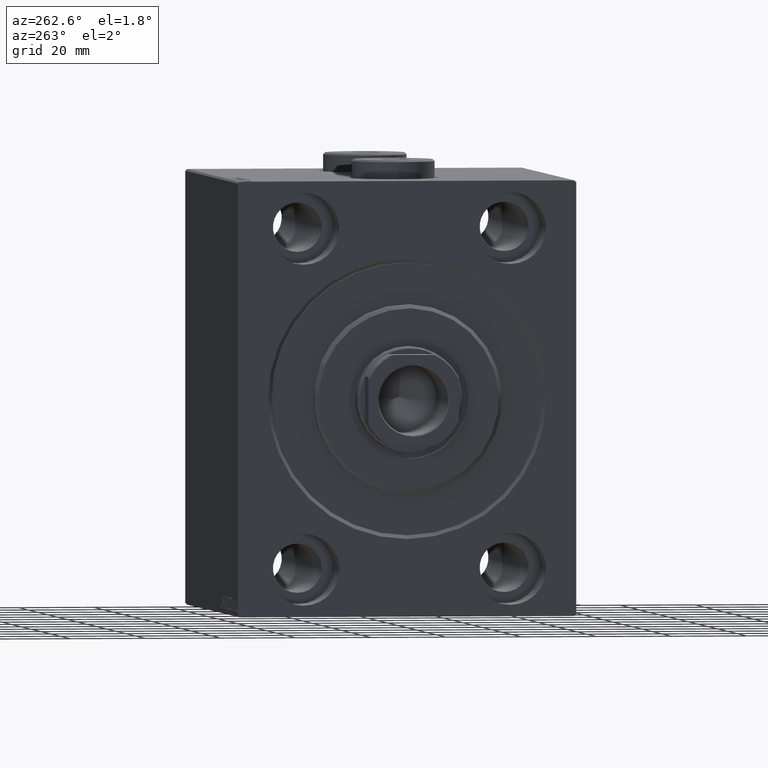
[diagram: clean part render]
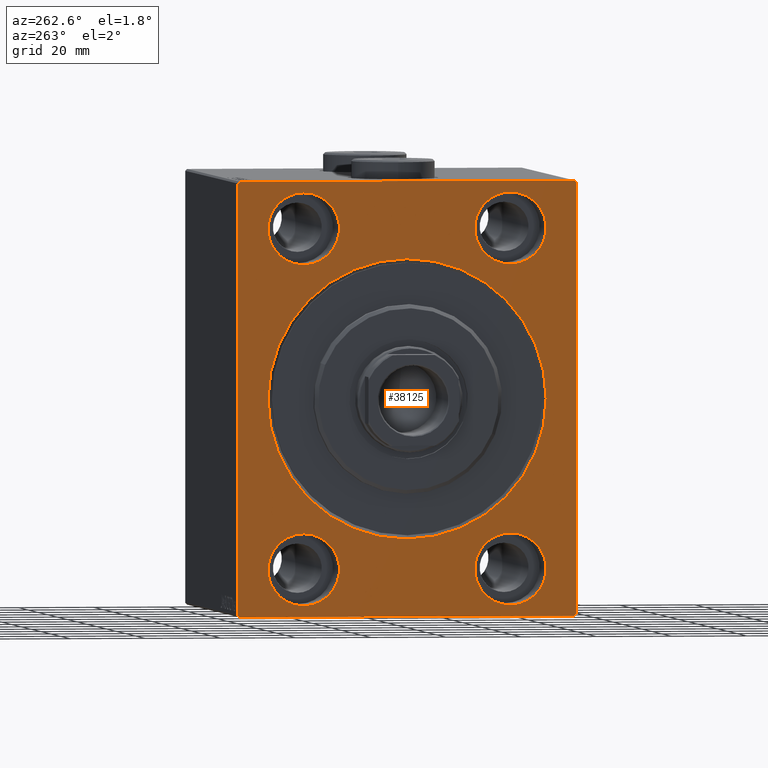
[diagram: same view with one face highlighted and labeled with its STEP entity id]
A machine part, auxiliary view. The second image highlights one B-rep face of the part: STEP entity #38125.
In plain terms, the highlighted planar face has unit normal (1, 0, 0).
Its self-contained STEP definition (entity closure, byte-faithful):
#164 = DIRECTION ( 'NONE',  ( 0.000000000000000000, 0.000000000000000000, -1.000000000000000000 ) ) ;
#664 = VERTEX_POINT ( 'NONE', #11811 ) ;
#1282 = VERTEX_POINT ( 'NONE', #24067 ) ;
#1824 = CARTESIAN_POINT ( 'NONE',  ( 0.000000000000000000, -45.00000000000000000, 57.49999999999999289 ) ) ;
#2330 = CARTESIAN_POINT ( 'NONE',  ( 0.000000000000000000, 27.49999999999998934, -44.99999999999998579 ) ) ;
#2348 = CARTESIAN_POINT ( 'NONE',  ( 0.000000000000000000, 27.49999999999998934, -54.49999999999998579 ) ) ;
#2373 = EDGE_CURVE ( 'NONE', #39156, #10766, #35784, .T. ) ;
#2652 = EDGE_CURVE ( 'NONE', #44523, #10459, #45270, .T. ) ;
#2721 = ORIENTED_EDGE ( 'NONE', *, *, #34428, .T. ) ;
#2810 = EDGE_LOOP ( 'NONE', ( #42779, #18294 ) ) ;
#3299 = CARTESIAN_POINT ( 'NONE',  ( 0.000000000000000000, 27.50000000000001066, 35.50000000000000711 ) ) ;
#3363 = EDGE_CURVE ( 'NONE', #44523, #664, #15681, .T. ) ;
#3377 = FACE_BOUND ( 'NONE', #19324, .T. ) ;
#3490 = CIRCLE ( 'NONE', #26152, 9.500000000000001776 ) ;
#3834 = CARTESIAN_POINT ( 'NONE',  ( 0.000000000000000000, 0.000000000000000000, 0.000000000000000000 ) ) ;
#4150 = AXIS2_PLACEMENT_3D ( 'NONE', #40844, #22751, #11982 ) ;
#4876 = VERTEX_POINT ( 'NONE', #12687 ) ;
#5002 = DIRECTION ( 'NONE',  ( 0.000000000000000000, 0.000000000000000000, -1.000000000000000000 ) ) ;
#5962 = LINE ( 'NONE', #1824, #9935 ) ;
#6053 = VECTOR ( 'NONE', #38198, 1000.000000000000114 ) ;
#6454 = VERTEX_POINT ( 'NONE', #25495 ) ;
#6829 = FACE_BOUND ( 'NONE', #2810, .T. ) ;
#7093 = CIRCLE ( 'NONE', #4150, 9.500000000000001776 ) ;
#7153 = DIRECTION ( 'NONE',  ( -1.000000000000000000, 0.000000000000000000, 0.000000000000000000 ) ) ;
#7444 = CARTESIAN_POINT ( 'NONE',  ( 0.000000000000000000, -27.50000000000000000, -54.49999999999998579 ) ) ;
#7760 = DIRECTION ( 'NONE',  ( -1.000000000000000000, 0.000000000000000000, 0.000000000000000000 ) ) ;
#8227 = AXIS2_PLACEMENT_3D ( 'NONE', #35497, #39167, #5002 ) ;
#8352 = VERTEX_POINT ( 'NONE', #18693 ) ;
#8584 = VERTEX_POINT ( 'NONE', #2348 ) ;
#8919 = DIRECTION ( 'NONE',  ( -1.000000000000000000, 0.000000000000000000, 0.000000000000000000 ) ) ;
#9617 = ORIENTED_EDGE ( 'NONE', *, *, #43179, .T. ) ;
#9935 = VECTOR ( 'NONE', #19949, 1000.000000000000000 ) ;
#10019 = PLANE ( 'NONE',  #38973 ) ;
#10459 = VERTEX_POINT ( 'NONE', #41905 ) ;
#10483 = CARTESIAN_POINT ( 'NONE',  ( 0.000000000000000000, -27.50000000000000000, -44.99999999999998579 ) ) ;
#10766 = VERTEX_POINT ( 'NONE', #34182 ) ;
#11162 = EDGE_CURVE ( 'NONE', #1282, #22462, #5962, .T. ) ;
#11631 = CIRCLE ( 'NONE', #29198, 9.500000000000001776 ) ;
#11811 = CARTESIAN_POINT ( 'NONE',  ( 0.000000000000000000, -44.49999999999997158, 57.49999999999999289 ) ) ;
#11982 = DIRECTION ( 'NONE',  ( 0.000000000000000000, 0.000000000000000000, 1.000000000000000000 ) ) ;
#12344 = VECTOR ( 'NONE', #34944, 1000.000000000000114 ) ;
#12687 = CARTESIAN_POINT ( 'NONE',  ( 0.000000000000000000, 44.50000000000001421, -57.50000000000000711 ) ) ;
#13381 = CARTESIAN_POINT ( 'NONE',  ( 0.000000000000000000, 45.00000000000001421, -57.50000000000000711 ) ) ;
#13573 = VECTOR ( 'NONE', #44425, 1000.000000000000114 ) ;
#13743 = EDGE_CURVE ( 'NONE', #8352, #6454, #7093, .T. ) ;
#13771 = ORIENTED_EDGE ( 'NONE', *, *, #41390, .T. ) ;
#14142 = FACE_BOUND ( 'NONE', #43749, .T. ) ;
#15424 = VECTOR ( 'NONE', #45004, 1000.000000000000000 ) ;
#15681 = LINE ( 'NONE', #42751, #38723 ) ;
#16697 = LINE ( 'NONE', #37771, #13573 ) ;
#16742 = AXIS2_PLACEMENT_3D ( 'NONE', #17978, #32624, #18201 ) ;
#17220 = ORIENTED_EDGE ( 'NONE', *, *, #30468, .F. ) ;
#17386 = CARTESIAN_POINT ( 'NONE',  ( 0.000000000000000000, -45.00000000000000000, -57.50000000000000711 ) ) ;
#17410 = EDGE_CURVE ( 'NONE', #25297, #41711, #3490, .T. ) ;
#17978 = CARTESIAN_POINT ( 'NONE',  ( 0.000000000000000000, 27.50000000000001066, 45.00000000000000711 ) ) ;
#17999 = CARTESIAN_POINT ( 'NONE',  ( 0.000000000000000000, -45.00000000000000000, 56.99999999999999289 ) ) ;
#18201 = DIRECTION ( 'NONE',  ( 0.000000000000000000, 0.000000000000000000, 1.000000000000000000 ) ) ;
#18294 = ORIENTED_EDGE ( 'NONE', *, *, #13743, .F. ) ;
#18693 = CARTESIAN_POINT ( 'NONE',  ( 0.000000000000000000, -27.49999999999998934, 35.50000000000000711 ) ) ;
#18799 = VERTEX_POINT ( 'NONE', #29477 ) ;
#18944 = CIRCLE ( 'NONE', #16742, 9.500000000000001776 ) ;
#19324 = EDGE_LOOP ( 'NONE', ( #32008, #34843 ) ) ;
#19350 = EDGE_CURVE ( 'NONE', #41711, #25297, #18944, .T. ) ;
#19865 = CIRCLE ( 'NONE', #35944, 9.500000000000001776 ) ;
#19949 = DIRECTION ( 'NONE',  ( 0.000000000000000000, 0.000000000000000000, -1.000000000000000000 ) ) ;
#20692 = ORIENTED_EDGE ( 'NONE', *, *, #44214, .F. ) ;
#21026 = FACE_BOUND ( 'NONE', #32402, .T. ) ;
#21745 = CARTESIAN_POINT ( 'NONE',  ( 0.000000000000000000, 27.49999999999998934, -44.99999999999998579 ) ) ;
#22170 = CIRCLE ( 'NONE', #28017, 37.00000000000003553 ) ;
#22335 = AXIS2_PLACEMENT_3D ( 'NONE', #2330, #24083, #30974 ) ;
#22462 = VERTEX_POINT ( 'NONE', #30310 ) ;
#22751 = DIRECTION ( 'NONE',  ( -1.000000000000000000, 0.000000000000000000, 0.000000000000000000 ) ) ;
#23826 = DIRECTION ( 'NONE',  ( -1.000000000000000000, 0.000000000000000000, 0.000000000000000000 ) ) ;
#24067 = CARTESIAN_POINT ( 'NONE',  ( 0.000000000000000000, -45.00000000000000000, 56.99999999999999289 ) ) ;
#24083 = DIRECTION ( 'NONE',  ( -1.000000000000000000, 0.000000000000000000, 0.000000000000000000 ) ) ;
#24560 = EDGE_CURVE ( 'NONE', #6454, #8352, #11631, .T. ) ;
#24707 = DIRECTION ( 'NONE',  ( 0.000000000000000000, 0.000000000000000000, 1.000000000000000000 ) ) ;
#25165 = DIRECTION ( 'NONE',  ( 0.000000000000000000, 1.000000000000000000, 0.000000000000000000 ) ) ;
#25297 = VERTEX_POINT ( 'NONE', #3299 ) ;
#25495 = CARTESIAN_POINT ( 'NONE',  ( 0.000000000000000000, -27.49999999999998934, 54.50000000000000711 ) ) ;
#25532 = EDGE_CURVE ( 'NONE', #18799, #8584, #34333, .T. ) ;
#25738 = ORIENTED_EDGE ( 'NONE', *, *, #28855, .F. ) ;
#26152 = AXIS2_PLACEMENT_3D ( 'NONE', #33456, #23826, #44230 ) ;
#27453 = DIRECTION ( 'NONE',  ( 1.000000000000000000, 0.000000000000000000, 0.000000000000000000 ) ) ;
#27888 = CARTESIAN_POINT ( 'NONE',  ( 0.000000000000000000, 0.000000000000000000, 37.00000000000003553 ) ) ;
#28017 = AXIS2_PLACEMENT_3D ( 'NONE', #41532, #31217, #35095 ) ;
#28480 = AXIS2_PLACEMENT_3D ( 'NONE', #21745, #7760, #24707 ) ;
#28855 = EDGE_CURVE ( 'NONE', #33928, #10459, #40891, .T. ) ;
#28856 = VERTEX_POINT ( 'NONE', #37891 ) ;
#29190 = EDGE_LOOP ( 'NONE', ( #40274, #13771, #41104, #42025, #25738, #9617, #20692, #2721 ) ) ;
#29198 = AXIS2_PLACEMENT_3D ( 'NONE', #45199, #7153, #42443 ) ;
#29477 = CARTESIAN_POINT ( 'NONE',  ( 0.000000000000000000, 27.49999999999998934, -35.49999999999998579 ) ) ;
#30310 = CARTESIAN_POINT ( 'NONE',  ( 0.000000000000000000, -45.00000000000000000, -57.00000000000003553 ) ) ;
#30468 = EDGE_CURVE ( 'NONE', #10766, #39156, #19865, .T. ) ;
#30888 = LINE ( 'NONE', #44865, #6053 ) ;
#30974 = DIRECTION ( 'NONE',  ( 0.000000000000000000, 0.000000000000000000, 1.000000000000000000 ) ) ;
#31081 = CARTESIAN_POINT ( 'NONE',  ( 0.000000000000000000, 44.50000000000002842, 57.50000000000000711 ) ) ;
#31217 = DIRECTION ( 'NONE',  ( 1.000000000000000000, 0.000000000000000000, 0.000000000000000000 ) ) ;
#31519 = DIRECTION ( 'NONE',  ( -0.000000000000000000, 0.7071067811865474617, 0.7071067811865474617 ) ) ;
#31684 = VERTEX_POINT ( 'NONE', #27888 ) ;
#31805 = DIRECTION ( 'NONE',  ( 0.000000000000000000, 0.000000000000000000, 1.000000000000000000 ) ) ;
#32008 = ORIENTED_EDGE ( 'NONE', *, *, #19350, .F. ) ;
#32383 = CIRCLE ( 'NONE', #8227, 37.00000000000003553 ) ;
#32402 = EDGE_LOOP ( 'NONE', ( #36226, #45087 ) ) ;
#32624 = DIRECTION ( 'NONE',  ( -1.000000000000000000, 0.000000000000000000, 0.000000000000000000 ) ) ;
#33456 = CARTESIAN_POINT ( 'NONE',  ( 0.000000000000000000, 27.50000000000001066, 45.00000000000000711 ) ) ;
#33928 = VERTEX_POINT ( 'NONE', #38813 ) ;
#34182 = CARTESIAN_POINT ( 'NONE',  ( 0.000000000000000000, -27.50000000000000000, -35.49999999999998579 ) ) ;
#34333 = CIRCLE ( 'NONE', #28480, 9.500000000000001776 ) ;
#34428 = EDGE_CURVE ( 'NONE', #41832, #22462, #30888, .T. ) ;
#34771 = FACE_BOUND ( 'NONE', #44402, .T. ) ;
#34798 = LINE ( 'NONE', #17386, #42372 ) ;
#34843 = ORIENTED_EDGE ( 'NONE', *, *, #17410, .F. ) ;
#34944 = DIRECTION ( 'NONE',  ( -0.000000000000000000, 0.7071067811865474617, -0.7071067811865474617 ) ) ;
#35095 = DIRECTION ( 'NONE',  ( 0.000000000000000000, 0.000000000000000000, -1.000000000000000000 ) ) ;
#35218 = FACE_OUTER_BOUND ( 'NONE', #29190, .T. ) ;
#35497 = CARTESIAN_POINT ( 'NONE',  ( 0.000000000000000000, 0.000000000000000000, 0.000000000000000000 ) ) ;
#35639 = DIRECTION ( 'NONE',  ( 0.000000000000000000, -1.000000000000000000, -1.541976423090495387E-16 ) ) ;
#35784 = CIRCLE ( 'NONE', #42353, 9.500000000000001776 ) ;
#35859 = LINE ( 'NONE', #17999, #37600 ) ;
#35906 = ORIENTED_EDGE ( 'NONE', *, *, #37889, .T. ) ;
#35944 = AXIS2_PLACEMENT_3D ( 'NONE', #40325, #8919, #36875 ) ;
#36226 = ORIENTED_EDGE ( 'NONE', *, *, #25532, .F. ) ;
#36393 = EDGE_CURVE ( 'NONE', #31684, #28856, #22170, .T. ) ;
#36875 = DIRECTION ( 'NONE',  ( 0.000000000000000000, 0.000000000000000000, 1.000000000000000000 ) ) ;
#37154 = ORIENTED_EDGE ( 'NONE', *, *, #36393, .T. ) ;
#37600 = VECTOR ( 'NONE', #31519, 1000.000000000000114 ) ;
#37771 = CARTESIAN_POINT ( 'NONE',  ( 0.000000000000000000, 45.00000000000001421, -57.00000000000003553 ) ) ;
#37889 = EDGE_CURVE ( 'NONE', #28856, #31684, #32383, .T. ) ;
#37891 = CARTESIAN_POINT ( 'NONE',  ( 0.000000000000000000, 4.531193156845210737E-15, -37.00000000000003553 ) ) ;
#38125 = ADVANCED_FACE ( 'NONE', ( #34771, #21026, #6829, #3377, #14142, #35218 ), #10019, .F. ) ;
#38198 = DIRECTION ( 'NONE',  ( -0.000000000000000000, -0.7071067811865474617, 0.7071067811865474617 ) ) ;
#38723 = VECTOR ( 'NONE', #35639, 1000.000000000000000 ) ;
#38813 = CARTESIAN_POINT ( 'NONE',  ( 0.000000000000000000, 45.00000000000001421, -57.00000000000003553 ) ) ;
#38973 = AXIS2_PLACEMENT_3D ( 'NONE', #3834, #27453, #164 ) ;
#39156 = VERTEX_POINT ( 'NONE', #7444 ) ;
#39167 = DIRECTION ( 'NONE',  ( 1.000000000000000000, 0.000000000000000000, 0.000000000000000000 ) ) ;
#39746 = CARTESIAN_POINT ( 'NONE',  ( 0.000000000000000000, 44.50000000000002842, 57.50000000000000711 ) ) ;
#40274 = ORIENTED_EDGE ( 'NONE', *, *, #11162, .F. ) ;
#40325 = CARTESIAN_POINT ( 'NONE',  ( 0.000000000000000000, -27.50000000000000000, -44.99999999999998579 ) ) ;
#40584 = CARTESIAN_POINT ( 'NONE',  ( 0.000000000000000000, -44.50000000000002842, -57.50000000000000711 ) ) ;
#40821 = ORIENTED_EDGE ( 'NONE', *, *, #2373, .F. ) ;
#40844 = CARTESIAN_POINT ( 'NONE',  ( 0.000000000000000000, -27.49999999999998934, 45.00000000000000711 ) ) ;
#40891 = LINE ( 'NONE', #13381, #15424 ) ;
#41104 = ORIENTED_EDGE ( 'NONE', *, *, #3363, .F. ) ;
#41390 = EDGE_CURVE ( 'NONE', #1282, #664, #35859, .T. ) ;
#41532 = CARTESIAN_POINT ( 'NONE',  ( 0.000000000000000000, 0.000000000000000000, 0.000000000000000000 ) ) ;
#41711 = VERTEX_POINT ( 'NONE', #42219 ) ;
#41832 = VERTEX_POINT ( 'NONE', #40584 ) ;
#41905 = CARTESIAN_POINT ( 'NONE',  ( 0.000000000000000000, 45.00000000000000000, 57.00000000000000711 ) ) ;
#42025 = ORIENTED_EDGE ( 'NONE', *, *, #2652, .T. ) ;
#42111 = DIRECTION ( 'NONE',  ( -1.000000000000000000, 0.000000000000000000, 0.000000000000000000 ) ) ;
#42219 = CARTESIAN_POINT ( 'NONE',  ( 0.000000000000000000, 27.50000000000001066, 54.50000000000000711 ) ) ;
#42353 = AXIS2_PLACEMENT_3D ( 'NONE', #10483, #42111, #31805 ) ;
#42372 = VECTOR ( 'NONE', #25165, 1000.000000000000000 ) ;
#42443 = DIRECTION ( 'NONE',  ( 0.000000000000000000, 0.000000000000000000, 1.000000000000000000 ) ) ;
#42751 = CARTESIAN_POINT ( 'NONE',  ( 0.000000000000000000, 45.00000000000000000, 57.50000000000000711 ) ) ;
#42779 = ORIENTED_EDGE ( 'NONE', *, *, #24560, .F. ) ;
#42786 = EDGE_CURVE ( 'NONE', #8584, #18799, #43563, .T. ) ;
#43179 = EDGE_CURVE ( 'NONE', #33928, #4876, #16697, .T. ) ;
#43563 = CIRCLE ( 'NONE', #22335, 9.500000000000001776 ) ;
#43749 = EDGE_LOOP ( 'NONE', ( #17220, #40821 ) ) ;
#44214 = EDGE_CURVE ( 'NONE', #41832, #4876, #34798, .T. ) ;
#44230 = DIRECTION ( 'NONE',  ( 0.000000000000000000, 0.000000000000000000, 1.000000000000000000 ) ) ;
#44402 = EDGE_LOOP ( 'NONE', ( #37154, #35906 ) ) ;
#44425 = DIRECTION ( 'NONE',  ( 0.000000000000000000, -0.7071067811865474617, -0.7071067811865474617 ) ) ;
#44523 = VERTEX_POINT ( 'NONE', #39746 ) ;
#44865 = CARTESIAN_POINT ( 'NONE',  ( 0.000000000000000000, -44.50000000000002842, -57.50000000000000711 ) ) ;
#45004 = DIRECTION ( 'NONE',  ( 0.000000000000000000, -1.206764157201257045E-16, 1.000000000000000000 ) ) ;
#45087 = ORIENTED_EDGE ( 'NONE', *, *, #42786, .F. ) ;
#45199 = CARTESIAN_POINT ( 'NONE',  ( 0.000000000000000000, -27.49999999999998934, 45.00000000000000711 ) ) ;
#45270 = LINE ( 'NONE', #31081, #12344 ) ;